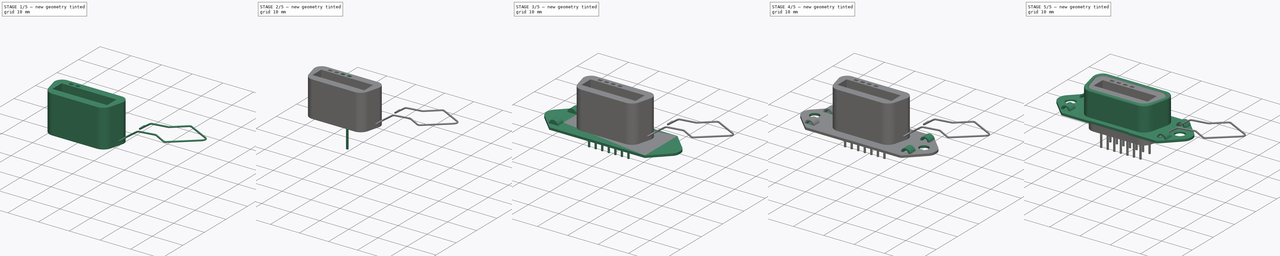
[diagram: build sequence overview — one tinted view per stage of 5, left to right]
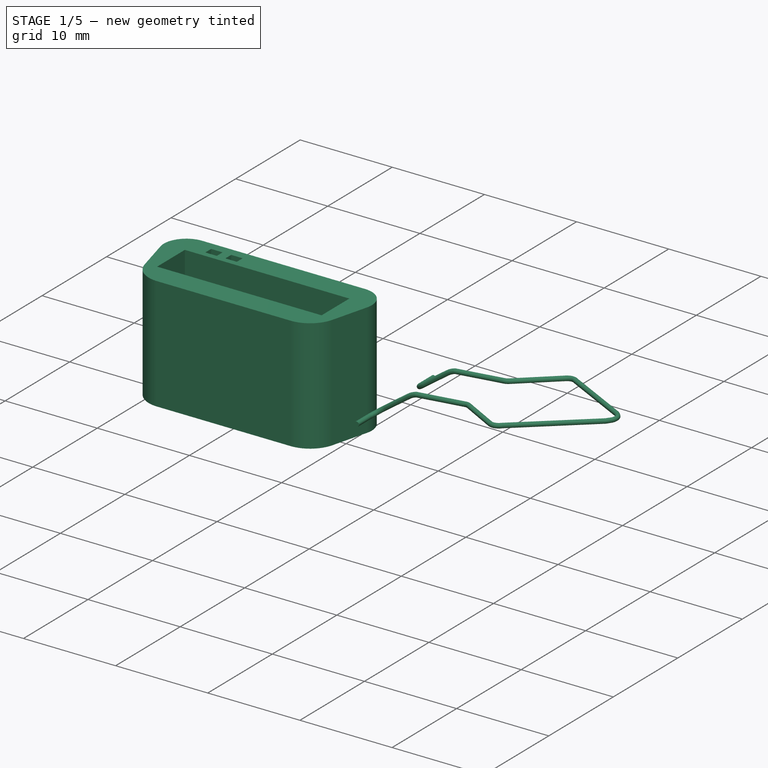
[diagram: stage 1 of 5 — iso view after this stage's code; geometry added in this stage tinted green]
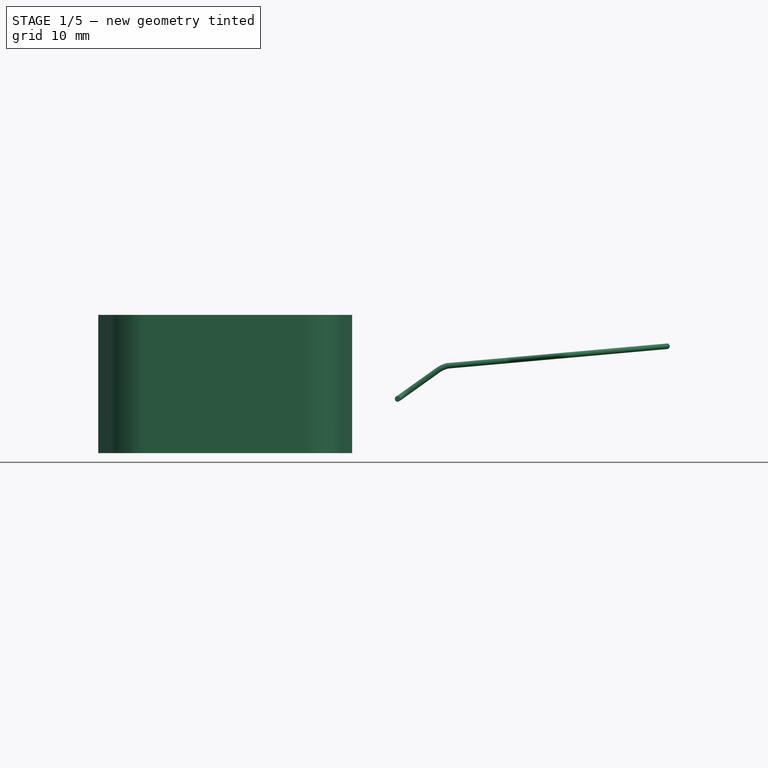
[diagram: stage 1 of 5 — front view after this stage's code; geometry added in this stage tinted green]
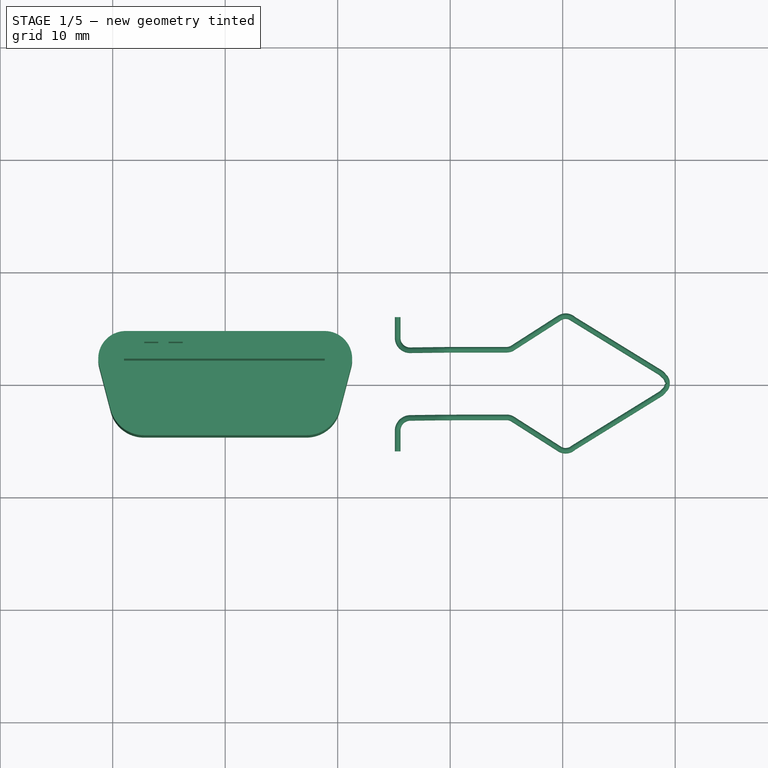
[diagram: stage 1 of 5 — top view after this stage's code; geometry added in this stage tinted green]
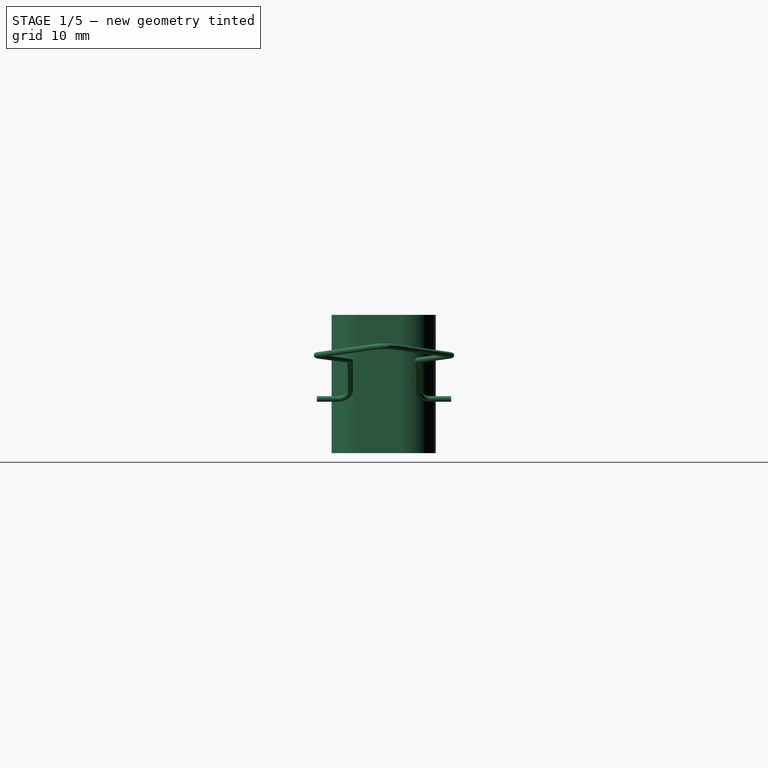
[diagram: stage 1 of 5 — right view after this stage's code; geometry added in this stage tinted green]
FCSTD DOCUMENT  (FreeCAD 0.20R29177 (Git))
Label: Norcomp_111-014-213L001Bance
License: All rights reserved
LicenseURL: http://en.wikipedia.org/wiki/All_rights_reserved
objects: Sketcher::SketchObject×9, PartDesign::Fillet×9, PartDesign::SubtractiveBox×7, PartDesign::AdditiveCylinder×4, PartDesign::Body×4, PartDesign::Pocket×3, Part::FeaturePython×3, PartDesign::SubShapeBinder×3, PartDesign::AdditiveBox×2, PartDesign::SubtractiveCylinder×2, PartDesign::Pad×2, PartDesign::Mirrored×2, Part::Extrusion×2, Part::Feature×1, PartDesign::Chamfer×1, PartDesign::LinearPattern×1, PartDesign::MultiTransform×1, Part::Section×1, PartDesign::AdditivePipe×1
note: 88 computed .brp shape members not serialized (recipe doc carries the construction recipe); baked Part::Feature solids carry a one-line shape summary decoded from their .brp

FEATURE [Sketcher::SketchObject] Sketch004  label="plastic-mass"
  FullyConstrained = false
  sketch-geometry (10):
    g0: LineSegment StartX=-8.83497 StartY=4.60395 StartZ=0 EndX=0 EndY=4.60395 EndZ=0
    g1: LineSegment StartX=0 StartY=-4.65895 StartZ=0 EndX=-7.23029 EndY=-4.65895 EndZ=0
    g2: LineSegment StartX=-11.2063 StartY=1.5329 StartZ=0 EndX=-10.1838 EndY=-2.37837 EndZ=0
    g3: ArcOfCircle CenterX=-8.83497 CenterY=2.15287 CenterZ=0 NormalX=0 NormalY=0 NormalZ=1 AngleXU=0 Radius=2.45107 StartAngle=1.5708 EndAngle=3.39731
    g4: ArcOfCircle CenterX=-7.23029 CenterY=-1.60621 CenterZ=0 NormalX=0 NormalY=0 NormalZ=1 AngleXU=0 Radius=3.05275 StartAngle=3.39731 EndAngle=4.71239
    g5: LineSegment StartX=8.83497 StartY=4.60395 StartZ=0 EndX=0 EndY=4.60395 EndZ=0
    g6: LineSegment StartX=0 StartY=-4.65895 StartZ=0 EndX=7.23029 EndY=-4.65895 EndZ=0
    g7: LineSegment StartX=11.2063 StartY=1.5329 StartZ=0 EndX=10.1838 EndY=-2.37837 EndZ=0
    g8: ArcOfCircle CenterX=8.83497 CenterY=2.15287 CenterZ=0 NormalX=0 NormalY=0 NormalZ=1 AngleXU=0 Radius=2.45107 StartAngle=6.02747 EndAngle=7.85398
    g9: ArcOfCircle CenterX=7.23029 CenterY=-1.60621 CenterZ=0 NormalX=0 NormalY=0 NormalZ=1 AngleXU=0 Radius=3.05275 StartAngle=4.71239 EndAngle=6.02747
  constraints (12):
    c: Horizontal(g0)
    c: Horizontal(g1)
    c: Tangent(g0,g3) = 1.5708
    c: Tangent(g2,g3) = -1.5708
    c: Tangent(g2,g4) = -1.5708
    c: Tangent(g1,g4) = 1.5708
    c: Horizontal(g5)
    c: Horizontal(g6)
    c: Tangent(g5,g8) = -1.5708
    c: Tangent(g7,g8) = 1.5708
    c: Tangent(g7,g9) = 1.5708
    c: Tangent(g6,g9) = -1.5708
FEATURE [PartDesign::Pad] Pad  label="plastic-base"
  Direction = (0,0,1)
  Length = 12.3
  Length2 = 10
  Profile = -> Sketch004
  ReferenceAxis = -> Sketch004 [N_Axis]
  Type = 0
FEATURE [PartDesign::SubtractiveBox] Box059
  AttacherType = Attacher::AttachEngine3D
  AttachmentOffset = pos=(-9,-2.15,2.3) rot=(0,0,1;0rad)
  BaseFeature = -> Pad
  Height = 10
  Length = 17.85
  MapMode = 5
  Placement = pos=(-9,-2.15,2.3) rot=(0,0,1;0rad)
  Support = -> [XY_Plane002]
  Width = 4.3
FEATURE [PartDesign::SubtractiveBox] Box060  label="front-hole-top-leftmost"
  AttacherType = Attacher::AttachEngine3D
  AttachmentOffset = pos=(-7.2,2.75,5) rot=(0,0,1;0rad)
  BaseFeature = -> Box059
  Height = 7.5
  Length = 1.25
  MapMode = 5
  Placement = pos=(-7.2,2.75,5) rot=(0,0,1;0rad)
  Support = -> [XY_Plane002]
  Width = 0.9
FEATURE [PartDesign::SubtractiveBox] Box061  label="front-hole-top-lefter"
  AttacherType = Attacher::AttachEngine3D
  AttachmentOffset = pos=(-5.025,2.75,5) rot=(0,0,1;0rad)
  BaseFeature = -> Box060
  Height = 7.5
  Length = 1.25
  MapMode = 5
  Placement = pos=(-5.025,2.75,5) rot=(0,0,1;0rad)
  Support = -> [XY_Plane002]
  Width = 0.9
FEATURE [PartDesign::Body] Body002  label="Plastic-insert"
  Group = -> [Sketch004,Pad,Box059,Box060,Box061,Box062,Box063,Sketch005,Pocket002,MultiTransform,LinearPattern,Mirrored]
  Origin = -> Origin002
  Placement = pos=(0,0,0.05) rot=(0,0,1;0rad)
  Tip = -> MultiTransform
FEATURE [Sketcher::SketchObject] Sketch006
  AttachmentOffset = pos=(0,0,30) rot=(0,0,1;0rad)
  FullyConstrained = false
  MapMode = 5
  sketch-geometry (10):
    g0: LineSegment StartX=-15.3287 StartY=5.96393 StartZ=0 EndX=-15.3287 EndY=4.13111 EndZ=0
    g1: ArcOfCircle CenterX=-16.4535 CenterY=4.13111 CenterZ=0 NormalX=0 NormalY=0 NormalZ=1 AngleXU=0 Radius=1.12482 StartAngle=4.75767 EndAngle=6.28319
    g2: LineSegment StartX=-16.4026 StartY=3.00745 StartZ=0 EndX=-25.0301 EndY=3.00745 EndZ=0
    g3: ArcOfCircle CenterX=-25.0301 CenterY=3.97348 CenterZ=0 NormalX=0 NormalY=0 NormalZ=1 AngleXU=0 Radius=0.966036 StartAngle=4.18291 EndAngle=4.71239
    g4: LineSegment StartX=-25.5181 StartY=3.13973 StartZ=0 EndX=-29.7175 EndY=5.82515 EndZ=0
    g5: ArcOfCircle CenterX=-30.2609 CenterY=4.97537 CenterZ=0 NormalX=0 NormalY=0 NormalZ=1 AngleXU=0 Radius=1.00867 StartAngle=1.00185 EndAngle=2.29595
    g6: LineSegment StartX=-30.9299 StartY=5.73026 StartZ=0 EndX=-38.6384 EndY=0.978398 EndZ=0
    g7: ArcOfCircle CenterX=-38.0301 CenterY=-0.00847085 CenterZ=0 NormalX=0 NormalY=0 NormalZ=1 AngleXU=0 Radius=1.15931 StartAngle=2.12322 EndAngle=2.49254
    g8: LineSegment StartX=-38.9536 StartY=0.692257 StartZ=0 EndX=-39.0634 EndY=0.581744 EndZ=0
    g9: ArcOfCircle CenterX=-38.5288 CenterY=0.0504484 CenterZ=0 NormalX=0 NormalY=0 NormalZ=1 AngleXU=0 Radius=0.753745 StartAngle=2.35935 EndAngle=3.23211
  constraints (11):
    c: Vertical(g0)
    c: Tangent(g0,g1) = 1.5708
    c: Coincident(g1,g2)
    c: Horizontal(g2)
    c: Tangent(g2,g3) = 1.5708
    c: Coincident(g3,g4)
    c: Tangent(g4,g5) = -1.5708
    c: Coincident(g5,g6)
    c: Tangent(g6,g7) = -1.5708
    c: Coincident(g7,g8)
    c: Tangent(g8,g9) = -1.5708
FEATURE [Sketcher::SketchObject] Sketch007
  AttachmentOffset = pos=(0,0,17) rot=(0,0,1;0rad)
  FullyConstrained = false
  MapMode = 5
  Placement = pos=(0,0,0) rot=(1,0,0;1.5708rad)
  sketch-geometry (3):
    g0: LineSegment StartX=-15.1976 StartY=4.72693 StartZ=0 EndX=-18.8847 EndY=7.36026 EndZ=0
    g1: ArcOfCircle CenterX=-20.4154 CenterY=5.21695 CenterZ=0 NormalX=0 NormalY=0 NormalZ=1 AngleXU=0 Radius=2.63383 StartAngle=0.950593 EndAngle=1.31384
    g2: LineSegment StartX=-19.7461 StartY=7.76431 StartZ=0 EndX=-39.5818 EndY=9.53227 EndZ=0
  constraints (2):
    c: Tangent(g0,g1) = -1.5708
    c: Coincident(g1,g2)
FEATURE [Part::Extrusion] Extrude
  Base = -> Sketch006
  Dir = (0,0,1)
  DirMode = 2
  FaceMakerClass = Part::FaceMakerBullseye
  LengthFwd = 50
  LengthRev = 0
  Solid = false
  Symmetric = true
FEATURE [Part::Extrusion] Extrude001
  Base = -> Sketch007
  Dir = (0,-1,2e-16)
  DirMode = 2
  FaceMakerClass = Part::FaceMakerBullseye
  LengthFwd = 50
  LengthRev = 0
  Solid = false
  Symmetric = true
FEATURE [Part::Section] Section
  Approximation = false
  Base = -> Extrude
  Tool = -> Extrude001
FEATURE [PartDesign::SubShapeBinder] Binder002
  BindCopyOnChange = 0
  BindMode = 0
  ClaimChildren = false
  Context = -> Body [Binder002.]
  Fuse = false
  MakeFace = true
  OffsetFill = false
  OffsetIntersection = false
  OffsetJoinType = 0
  OffsetOpenResult = false
  PartialLoad = false
  Relative = true
  Support = -> [Section]
  _Version = 2
FEATURE [Sketcher::SketchObject] Sketch008
  FullyConstrained = true
  MapMode = 7
  Placement = pos=(-15.3287,5.96393,4.82053) rot=(1,0,0;1.5708rad)
  Support = -> [Binder002]
  sketch-geometry (1):
    g0: Circle CenterX=0 CenterY=0 CenterZ=0 NormalX=0 NormalY=0 NormalZ=1 AngleXU=0 Radius=0.25
  constraints (2):
    c: Coincident(g0,g-1)
    c: Radius(g0) = 0.25
FEATURE [PartDesign::AdditivePipe] AdditivePipe
  AuxilleryCurvelinear = true
  AuxillerySpineTangent = false
  Binormal = (0,0,0)
  Mode = 0
  Profile = -> Sketch008
  Spine = -> Binder002
  SpineTangent = false
  Transformation = 0
  Transition = 0
FEATURE [PartDesign::Mirrored] Mirrored001
  BaseFeature = -> AdditivePipe
  MirrorPlane = -> XZ_Plane
  Originals = -> [AdditivePipe]
FEATURE [PartDesign::Body] Body  label="handle left"
  Group = -> [Binder,Binder001,Binder002,Sketch008,AdditivePipe,Mirrored001]
  Origin = -> Origin
  Tip = -> Mirrored001
FEATURE [Part::FeaturePython] Clone  label="handles right"  # Draft clone (typed FeaturePython)
  AttacherType = Attacher::AttachEngine3D
  Fuse = false
  Objects = -> [Body]
  Scale = (-1,1,1)
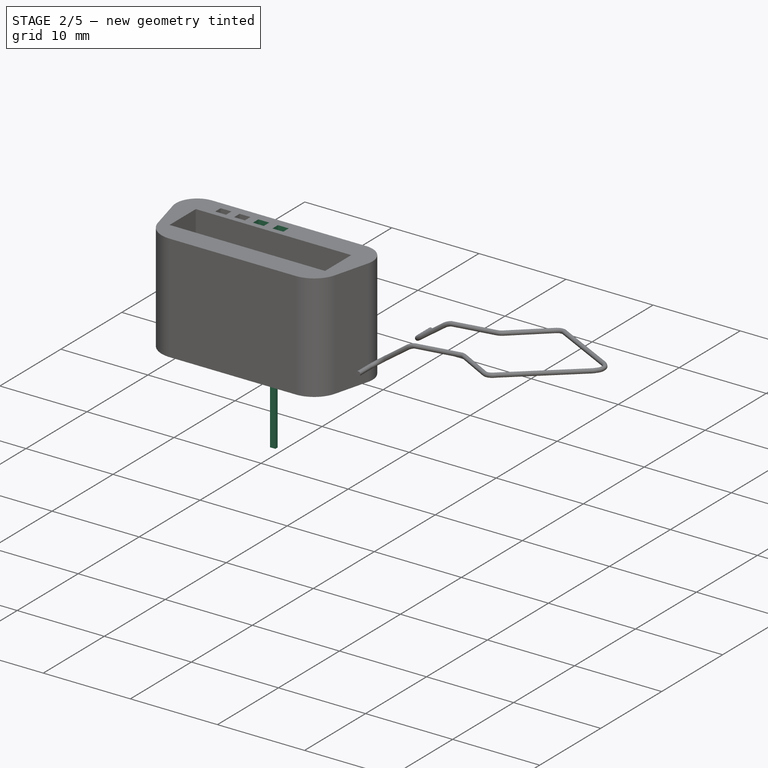
[diagram: stage 2 of 5 — iso view after this stage's code; geometry added in this stage tinted green]
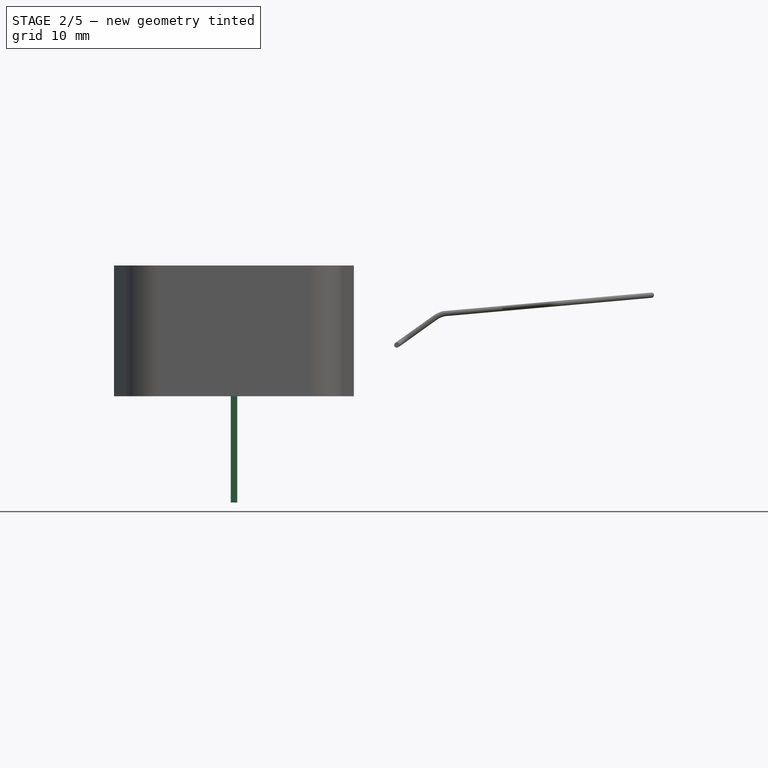
[diagram: stage 2 of 5 — front view after this stage's code; geometry added in this stage tinted green]
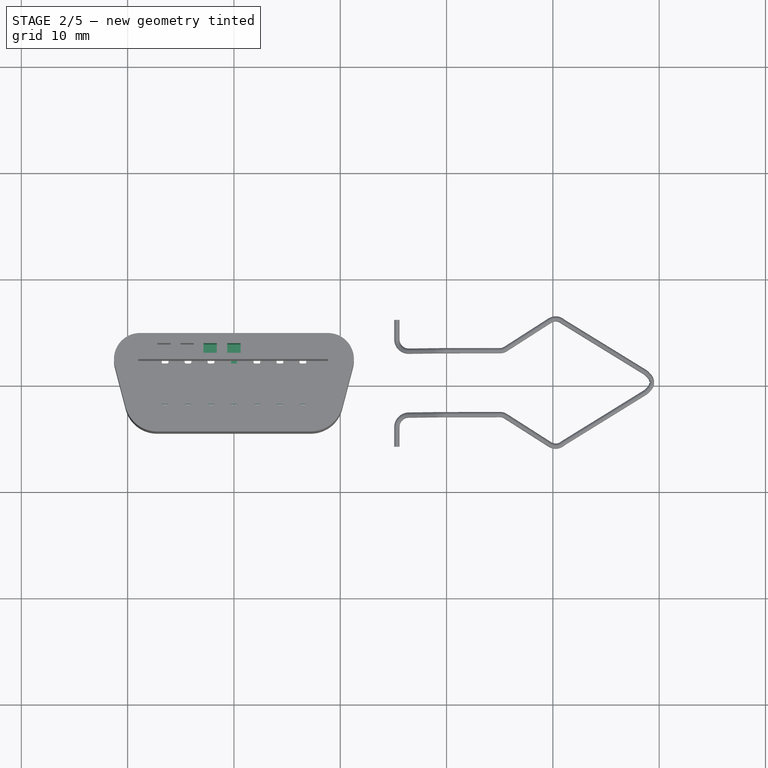
[diagram: stage 2 of 5 — top view after this stage's code; geometry added in this stage tinted green]
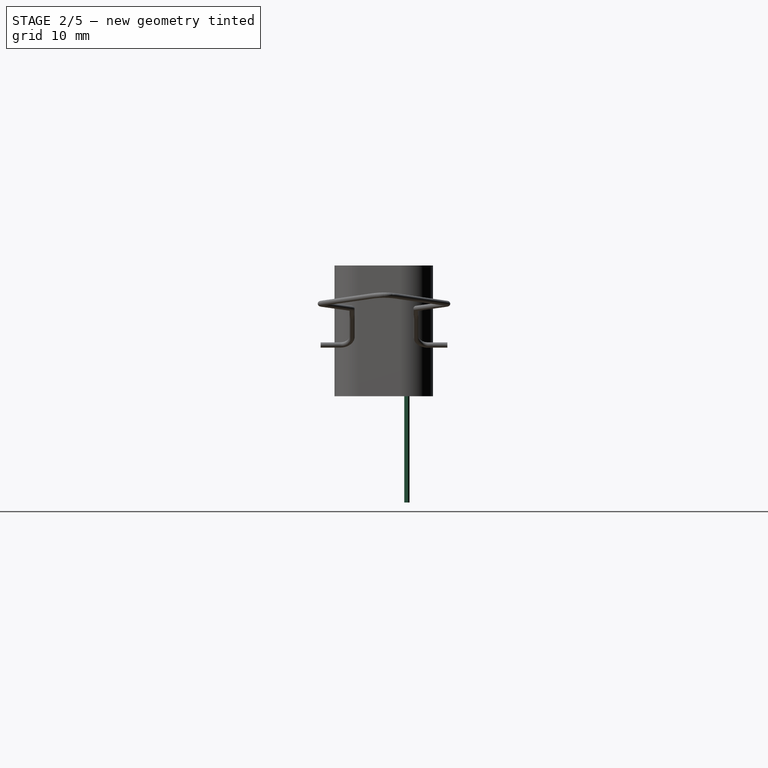
[diagram: stage 2 of 5 — right view after this stage's code; geometry added in this stage tinted green]
FEATURE [PartDesign::SubtractiveBox] Box062  label="font-hole-top-left"
  AttacherType = Attacher::AttachEngine3D
  AttachmentOffset = pos=(-2.865,2.75,5) rot=(0,0,1;0rad)
  BaseFeature = -> Box061
  Height = 7.5
  Length = 1.25
  MapMode = 5
  Placement = pos=(-2.865,2.75,5) rot=(0,0,1;0rad)
  Support = -> [XY_Plane002]
  Width = 0.9
FEATURE [PartDesign::SubtractiveBox] Box063  label="front-hole-top-mid"
  AttacherType = Attacher::AttachEngine3D
  AttachmentOffset = pos=(-0.625,2.75,5) rot=(0,0,1;0rad)
  BaseFeature = -> Box062
  Height = 7.5
  Length = 1.25
  MapMode = 5
  Placement = pos=(-0.625,2.75,5) rot=(0,0,1;0rad)
  Support = -> [XY_Plane002]
  Width = 0.9
FEATURE [PartDesign::SubShapeBinder] Binder  label="handle-left"
  BindCopyOnChange = 0
  BindMode = 0
  ClaimChildren = false
  Context = -> Body [Binder.]
  Fuse = false
  MakeFace = true
  OffsetFill = false
  OffsetIntersection = false
  OffsetJoinType = 0
  OffsetOpenResult = false
  PartialLoad = false
  Relative = true
  _Version = 2
FEATURE [PartDesign::SubShapeBinder] Binder001  label="handle-right"
  BindCopyOnChange = 0
  BindMode = 0
  ClaimChildren = false
  Context = -> Body [Binder001.]
  Fuse = false
  MakeFace = true
  OffsetFill = false
  OffsetIntersection = false
  OffsetJoinType = 0
  OffsetOpenResult = false
  PartialLoad = false
  Placement = pos=(0,0,0) rot=(0,0,1;3.14159rad)
  Relative = true
  _Version = 2
FEATURE [PartDesign::AdditiveBox] Box064
  AttacherType = Attacher::AttachEngine3D
  AttachmentOffset = pos=(-0.3,1.9,-10) rot=(0,0,1;0rad)
  Height = 11.8
  Length = 0.61
  MapMode = 5
  Placement = pos=(-0.3,1.9,-10) rot=(0,0,1;0rad)
  Support = -> [XY_Plane018]
  Width = 0.5
FEATURE [PartDesign::Fillet] Fillet073
  Base = -> Box064 [Edge7]
  BaseFeature = -> Box064
  Placement = pos=(-0.3,1.9,-10) rot=(0,0,1;0rad)
  Radius = 0.2
  SupportTransform = false
  UseAllEdges = false
FEATURE [PartDesign::Fillet] Fillet074
  Base = -> Fillet073 [Edge15]
  BaseFeature = -> Fillet073
  Placement = pos=(-0.3,1.9,-10) rot=(0,0,1;0rad)
  Radius = 0.2
  SupportTransform = false
  UseAllEdges = false
FEATURE [Sketcher::SketchObject] Sketch005  label="pin-holes001"
  FullyConstrained = false
  MapMode = 5
  Support = -> [XY_Plane002]
  sketch-geometry (10):
    g0: ArcOfCircle CenterX=-6.6675 CenterY=2.286 CenterZ=0 NormalX=0 NormalY=0 NormalZ=1 AngleXU=0 Radius=0.127 StartAngle=1.5708 EndAngle=3.14159
    g1: LineSegment StartX=-6.6675 StartY=2.413 StartZ=0 EndX=-6.2865 EndY=2.413 EndZ=0
    g2: ArcOfCircle CenterX=-6.2865 CenterY=2.286 CenterZ=0 NormalX=0 NormalY=0 NormalZ=1 AngleXU=0 Radius=0.127 StartAngle=1e-16 EndAngle=1.5708
    g3: LineSegment StartX=-6.1595 StartY=2.286 StartZ=0 EndX=-6.1595 EndY=2.032 EndZ=0
    g4: ArcOfCircle CenterX=-6.2865 CenterY=2.032 CenterZ=0 NormalX=0 NormalY=0 NormalZ=1 AngleXU=0 Radius=0.127 StartAngle=4.71239 EndAngle=6.28319
    g5: LineSegment StartX=-6.2865 StartY=1.905 StartZ=0 EndX=-6.6675 EndY=1.905 EndZ=0
    g6: ArcOfCircle CenterX=-6.6675 CenterY=2.032 CenterZ=0 NormalX=0 NormalY=0 NormalZ=1 AngleXU=0 Radius=0.127 StartAngle=3.14159 EndAngle=4.71239
    g7: LineSegment StartX=-6.7945 StartY=2.032 StartZ=0 EndX=-6.7945 EndY=2.286 EndZ=0
    g8: GeomPoint X=-6.7945 Y=2.413 Z=0
    g9: GeomPoint X=-6.1595 Y=1.905 Z=0
  constraints (19):
    c: Tangent(g0,g1) = 1.5708
    c: Tangent(g1,g2) = 1.5708
    c: Tangent(g2,g3) = 1.5708
    c: Tangent(g3,g4) = 1.5708
    c: Tangent(g4,g5) = 1.5708
    c: Tangent(g5,g6) = 1.5708
    c: Tangent(g6,g7) = 1.5708
    c: Tangent(g7,g0) = 1.5708
    c: Horizontal(g1)
    c: Horizontal(g5)
    c: Vertical(g3)
    c: Vertical(g7)
    c: Equal(g0,g2)
    c: Equal(g2,g4)
    c: Equal(g4,g6)
    c: PointOnObject(g8,g1)
    c: PointOnObject(g8,g7)
    c: PointOnObject(g9,g3)
    c: PointOnObject(g9,g5)
FEATURE [PartDesign::Pocket] Pocket002  label="pinhole"
  AlongSketchNormal = false
  BaseFeature = -> Box063
  Direction = (0,0,-1)
  Length = 4.6
  Length2 = 0
  Midplane = true
  Placement = pos=(-0.625,2.75,5) rot=(0,0,1;0rad)
  Profile = -> Sketch005
  ReferenceAxis = -> Sketch005 [N_Axis]
  Type = 4
FEATURE [PartDesign::LinearPattern] LinearPattern
  Direction = -> Sketch005 [H_Axis]
  Length = 12.96
  Occurrences = 7
  Placement = pos=(-0.625,2.75,5) rot=(0,0,1;0rad)
FEATURE [PartDesign::Mirrored] Mirrored
  MirrorPlane = -> Sketch005 [H_Axis]
  Placement = pos=(-0.625,2.75,5) rot=(0,0,1;0rad)
FEATURE [PartDesign::MultiTransform] MultiTransform
  BaseFeature = -> Pocket002
  Originals = -> [Pocket002]
  Placement = pos=(-0.625,2.75,5) rot=(0,0,1;0rad)
  Transformations = -> [LinearPattern,Mirrored]
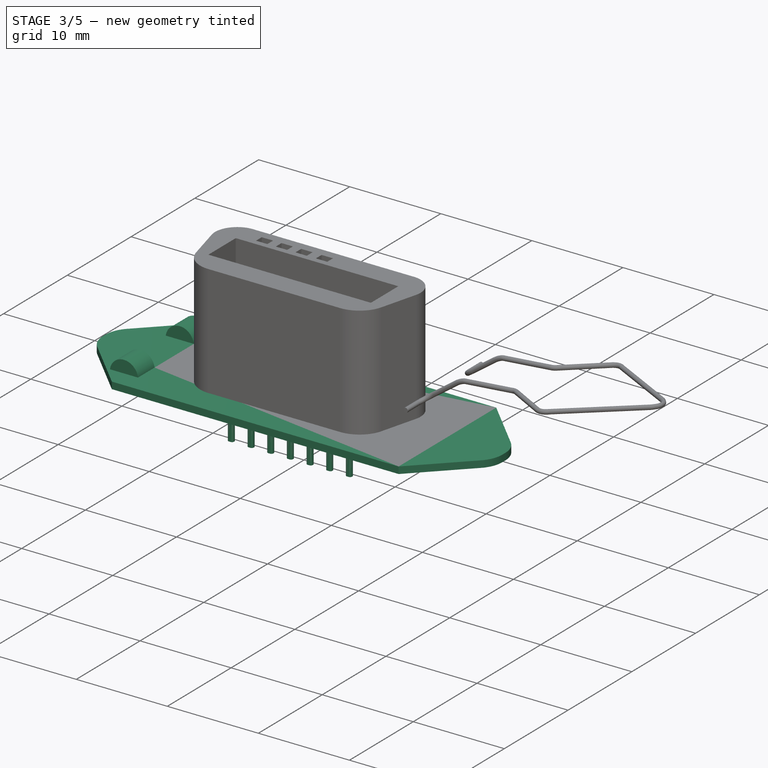
[diagram: stage 3 of 5 — iso view after this stage's code; geometry added in this stage tinted green]
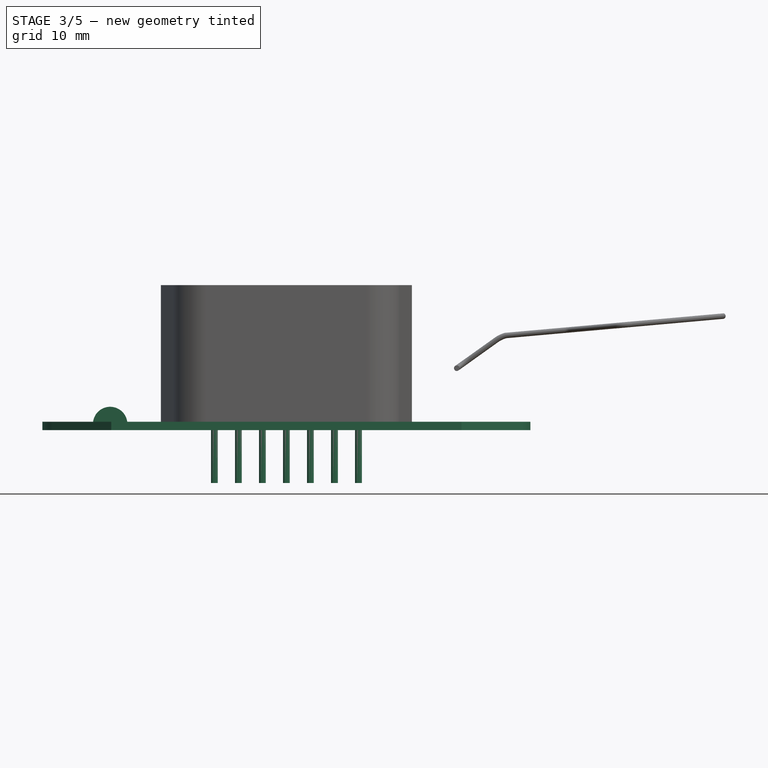
[diagram: stage 3 of 5 — front view after this stage's code; geometry added in this stage tinted green]
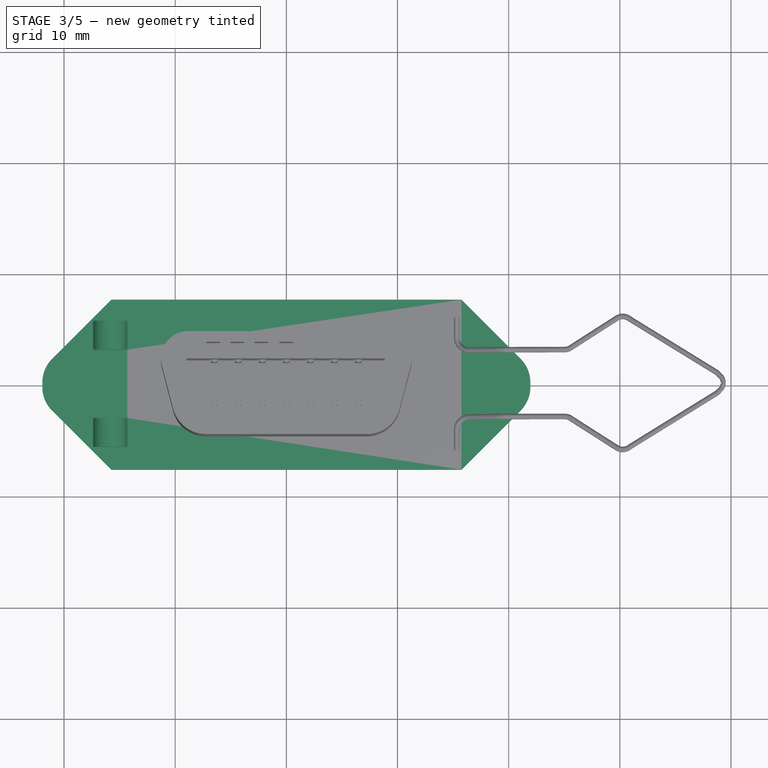
[diagram: stage 3 of 5 — top view after this stage's code; geometry added in this stage tinted green]
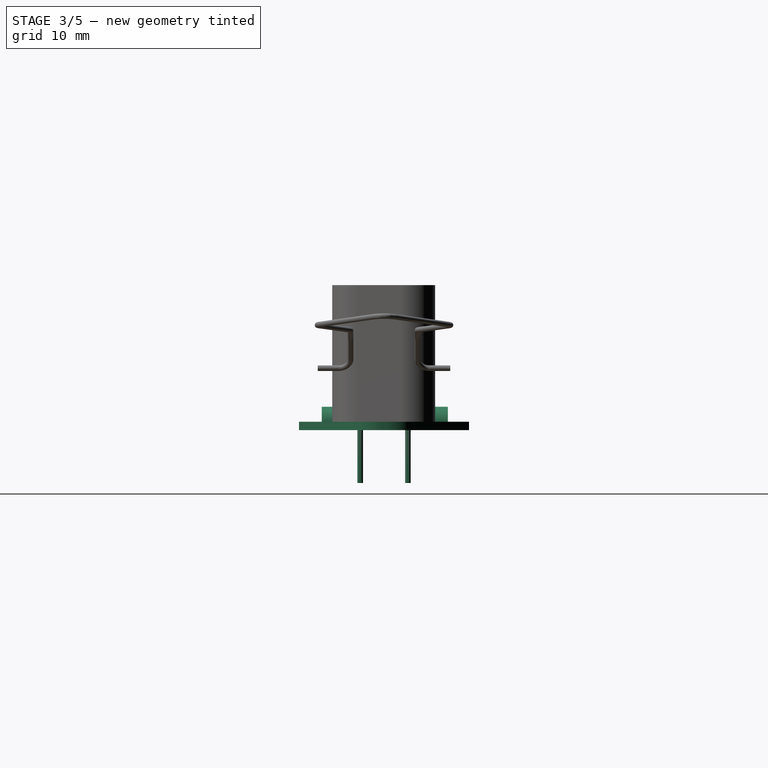
[diagram: stage 3 of 5 — right view after this stage's code; geometry added in this stage tinted green]
FEATURE [Sketcher::SketchObject] Sketch001  label="pin-holes"
  FullyConstrained = false
  MapMode = 5
  Support = -> [XY_Plane017]
  sketch-geometry (16):
    g0: Circle CenterX=18 CenterY=0 CenterZ=0 NormalX=0 NormalY=0 NormalZ=1 AngleXU=0 Radius=1.525
    g1: Circle CenterX=-18 CenterY=0 CenterZ=0 NormalX=0 NormalY=0 NormalZ=1 AngleXU=0 Radius=1.525
    g2: Circle CenterX=6.48 CenterY=2.145 CenterZ=0 NormalX=0 NormalY=0 NormalZ=1 AngleXU=0 Radius=0.5
    g3: Circle CenterX=4.32 CenterY=2.145 CenterZ=0 NormalX=0 NormalY=0 NormalZ=1 AngleXU=0 Radius=0.5
    g4: Circle CenterX=2.16 CenterY=2.145 CenterZ=0 NormalX=0 NormalY=0 NormalZ=1 AngleXU=0 Radius=0.5
    g5: Circle CenterX=0 CenterY=2.145 CenterZ=0 NormalX=0 NormalY=0 NormalZ=1 AngleXU=0 Radius=0.5
    g6: Circle CenterX=-2.16 CenterY=2.145 CenterZ=0 NormalX=0 NormalY=0 NormalZ=1 AngleXU=0 Radius=0.5
    g7: Circle CenterX=-4.32 CenterY=2.145 CenterZ=0 NormalX=0 NormalY=0 NormalZ=1 AngleXU=0 Radius=0.5
    g8: Circle CenterX=-6.48 CenterY=2.145 CenterZ=0 NormalX=0 NormalY=0 NormalZ=1 AngleXU=0 Radius=0.5
    g9: Circle CenterX=0 CenterY=-2.145 CenterZ=0 NormalX=0 NormalY=0 NormalZ=1 AngleXU=0 Radius=0.5
    g10: Circle CenterX=6.48 CenterY=-2.145 CenterZ=0 NormalX=0 NormalY=0 NormalZ=1 AngleXU=0 Radius=0.5
    g11: Circle CenterX=4.32 CenterY=-2.145 CenterZ=0 NormalX=0 NormalY=0 NormalZ=1 AngleXU=0 Radius=0.5
    g12: Circle CenterX=2.16 CenterY=-2.145 CenterZ=0 NormalX=0 NormalY=0 NormalZ=1 AngleXU=0 Radius=0.5
    g13: Circle CenterX=-2.16 CenterY=-2.145 CenterZ=0 NormalX=0 NormalY=0 NormalZ=1 AngleXU=0 Radius=0.5
    g14: Circle CenterX=-4.32 CenterY=-2.145 CenterZ=0 NormalX=0 NormalY=0 NormalZ=1 AngleXU=0 Radius=0.5
    g15: Circle CenterX=-6.48 CenterY=-2.145 CenterZ=0 NormalX=0 NormalY=0 NormalZ=1 AngleXU=0 Radius=0.5
FEATURE [Part::Feature] Part__Feature  label="ref-model"
  Placement = pos=(82,37.7827,-17.4685) rot=(1,0,0;1.5708rad)
  shape: bbox 79.46 x 15.41 x 18.47 mm, 1573 faces, 4 solids (baked)
FEATURE [PartDesign::AdditiveBox] Box057
  AttacherType = Attacher::AttachEngine3D
  AttachmentOffset = pos=(-21.95,-7.65,-0.75) rot=(0,0,1;0rad)
  Height = 0.75
  Length = 43.9
  MapMode = 5
  Placement = pos=(-21.95,-7.65,-0.75) rot=(0,0,1;0rad)
  Support = -> [XY_Plane017]
  Width = 15.3
FEATURE [PartDesign::Chamfer] Chamfer004
  Angle = 45
  Base = -> Box057 [Edge1,Edge3,Edge7,Edge5]
  BaseFeature = -> Box057
  ChamferType = 0
  FlipDirection = false
  Placement = pos=(-21.95,-7.65,-0.75) rot=(0,0,1;0rad)
  Size = 6.2
  Size2 = 1
  SupportTransform = false
  UseAllEdges = false
FEATURE [PartDesign::Fillet] Fillet069
  Base = -> Chamfer004 [Edge2,Edge3,Edge24,Edge23]
  BaseFeature = -> Chamfer004
  Placement = pos=(-21.95,-7.65,-0.75) rot=(0,0,1;0rad)
  Radius = 3
  SupportTransform = false
  UseAllEdges = false
FEATURE [Sketcher::SketchObject] Sketch002  label="chassis001"
  FullyConstrained = false
  MapMode = 5
  Support = -> [XY_Plane017]
  sketch-geometry (22):
    g0: LineSegment StartX=15.5 StartY=-7.7 StartZ=0 EndX=-15.5 EndY=-7.7 EndZ=0
    g1: LineSegment StartX=-15.5 StartY=7.7 StartZ=0 EndX=15.5 EndY=7.7 EndZ=0
    g2: ArcOfCircle CenterX=-10.7 CenterY=5.404 CenterZ=0 NormalX=0 NormalY=0 NormalZ=1 AngleXU=1.8744 Radius=1.722 StartAngle=0 EndAngle=1.2672
    g3: LineSegment StartX=-11.1999 StartY=7.04954 StartZ=0 EndX=11.1999 EndY=7.04954 EndZ=0
    g4: ArcOfCircle CenterX=10.7 CenterY=5.404 CenterZ=0 NormalX=0 NormalY=0 NormalZ=1 AngleXU=1.2672 Radius=1.722 StartAngle=5.02159 EndAngle=6.28319
    g5: LineSegment StartX=-21.1655 StartY=2.01497 StartZ=0 EndX=-15.6356 EndY=7.63507 EndZ=0
    g6: LineSegment StartX=-15.6356 StartY=7.63507 StartZ=0 EndX=-15.5 EndY=7.7 EndZ=0
    g7: LineSegment StartX=-15.6356 StartY=-7.63507 StartZ=0 EndX=-21.1655 EndY=-2.01497 EndZ=0
    g8: LineSegment StartX=-15.5 StartY=-7.7 StartZ=0 EndX=-15.6356 EndY=-7.63507 EndZ=0
    g9: LineSegment StartX=15.6353 StartY=-7.63492 StartZ=0 EndX=15.5 EndY=-7.7 EndZ=0
    g10: LineSegment StartX=21.1655 StartY=-2.01497 StartZ=0 EndX=15.6356 EndY=-7.63507 EndZ=0
    g11: LineSegment StartX=15.6356 StartY=7.63507 StartZ=0 EndX=21.1655 EndY=2.01497 EndZ=0
    g12: LineSegment StartX=15.5224 StartY=7.69472 StartZ=0 EndX=15.6224 EndY=7.64472 EndZ=0
    g13: LineSegment StartX=-10.8716 StartY=-5.50704 StartZ=0 EndX=-12.4215 EndY=5.39696 EndZ=0
    g14: LineSegment StartX=6.42951e-06 StartY=-7.05136 StartZ=0 EndX=-9.65081 EndY=-7.0526 EndZ=0
    g15: LineSegment StartX=9.65081 StartY=-7.0446 StartZ=0 EndX=-6.42951e-06 EndY=-7.04336 EndZ=0
    g16: LineSegment StartX=12.4215 StartY=5.40496 StartZ=0 EndX=10.8716 EndY=-5.49904 EndZ=0
    g17: ArcOfCircle CenterX=-19.15 CenterY=4.441e-13 CenterZ=0 NormalX=0 NormalY=0 NormalZ=1 AngleXU=-2.35619 Radius=2.85 StartAngle=4.71246 EndAngle=6.28311
    g18: ArcOfCircle CenterX=19.15 CenterY=4.388e-13 CenterZ=0 NormalX=0 NormalY=0 NormalZ=1 AngleXU=-0.785398 Radius=2.85 StartAngle=7.12766e-05 EndAngle=1.57073
    g19: ArcOfCircle CenterX=10.7 CenterY=5.404 CenterZ=0 NormalX=0 NormalY=0 NormalZ=1 AngleXU=1.2672 Radius=1.722 StartAngle=5.01599 EndAngle=5.01996
    g20: ArcOfCircle CenterX=-9.15014 CenterY=-5.40446 CenterZ=0 NormalX=0 NormalY=0 NormalZ=1 AngleXU=-1.8744 Radius=1.72473 StartAngle=5.0743 EndAngle=6.28307
    g21: ArcOfCircle CenterX=9.15014 CenterY=-5.39646 CenterZ=0 NormalX=0 NormalY=0 NormalZ=1 AngleXU=-1.2672 Radius=1.72473 StartAngle=0.000111196 EndAngle=1.20889
FEATURE [PartDesign::AdditiveCylinder] Cylinder016  label="hinge-top-left"
  Angle = 180
  AttacherType = Attacher::AttachEngine3D
  AttachmentOffset = pos=(-15.85,5.75,-0.2) rot=(1,0,0;1.5708rad)
  BaseFeature = -> Fillet069
  FirstAngle = 0
  Height = 2.6
  MapMode = 5
  Placement = pos=(-15.85,5.75,-0.2) rot=(1,0,0;1.5708rad)
  Radius = 1.55
  SecondAngle = 0
  Support = -> [XY_Plane017]
FEATURE [PartDesign::AdditiveCylinder] Cylinder017  label="hinge-bot-left"
  Angle = 180
  AttacherType = Attacher::AttachEngine3D
  AttachmentOffset = pos=(-15.85,-3,-0.2) rot=(1,0,0;1.5708rad)
  BaseFeature = -> Cylinder016
  FirstAngle = 0
  Height = 2.6
  MapMode = 5
  Placement = pos=(-15.85,-3,-0.2) rot=(1,0,0;1.5708rad)
  Radius = 1.55
  SecondAngle = 0
  Support = -> [XY_Plane017]
FEATURE [PartDesign::Fillet] Fillet075
  Base = -> Fillet074 [Edge16]
  BaseFeature = -> Fillet074
  Placement = pos=(-0.3,1.9,-10) rot=(0,0,1;0rad)
  Radius = 0.2
  SupportTransform = false
  UseAllEdges = false
FEATURE [PartDesign::Fillet] Fillet076  label="Pin1"
  Base = -> Fillet075 [Edge16]
  BaseFeature = -> Fillet075
  Placement = pos=(-0.3,1.9,-10) rot=(0,0,1;0rad)
  Radius = 0.2
  SupportTransform = false
  UseAllEdges = false
FEATURE [PartDesign::Body] Body017  label="base-pin"
  Group = -> [Box064,Fillet073,Fillet074,Fillet075,Fillet076]
  Origin = -> Origin018
  Placement = pos=(-6.48,0,4.5) rot=(0,0,1;0rad)
  Tip = -> Fillet076
FEATURE [Part::FeaturePython] Array  label="pins"  # Draft array (typed FeaturePython)
  AlwaysSyncPlacement = false
  Angle = 360
  ArrayType = 0
  Axis = (0,0,1)
  Base = -> Body017
  Center = (0,0,0)
  Count = 14
  ExpandArray = false
  Fuse = false
  IntervalAxis = (0,0,0)
  IntervalX = (2.16,0,0)
  IntervalY = (0,-4.29,0)
  IntervalZ = (0,0,100)
  NumberCircles = 3
  NumberPolar = 5
  NumberX = 7
  NumberY = 2
  NumberZ = 1
  PlacementList = 14 placements: [(-6.48,0,4.5),(-6.48,-4.29,4.5),(-4.32,0,4.5),(-4.32,-4.29,4.5),(-2.16,0,4.5),(-2.16,-4.29,4.5),(0,0,4.5),(0,-4.29,4.5),(2.16,0,4.5),(2.16,-4.29,4.5),(4.32,0,4.5),(4.32,-4.29,4.5),(6.48,0,4.5),(6.48,-4.29,4.5)]
  RadialDistance = 50
  ScaleList = (14) [(1,1,1),(1,1,1),(1,1,1),(1,1,1),(1,1,1),(1,1,1),(1,1,1),(1,1,1),(1,1,1),(1,1,1),(1,1,1),(1,1,1),(1,1,1),(1,1,1)]
  Symmetry = 1
  TangentialDistance = 25
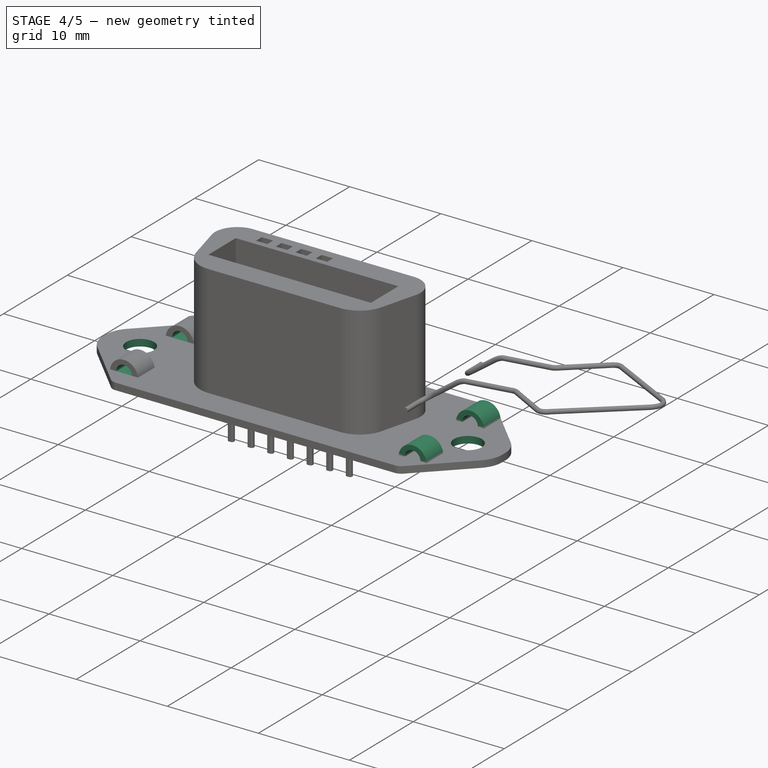
[diagram: stage 4 of 5 — iso view after this stage's code; geometry added in this stage tinted green]
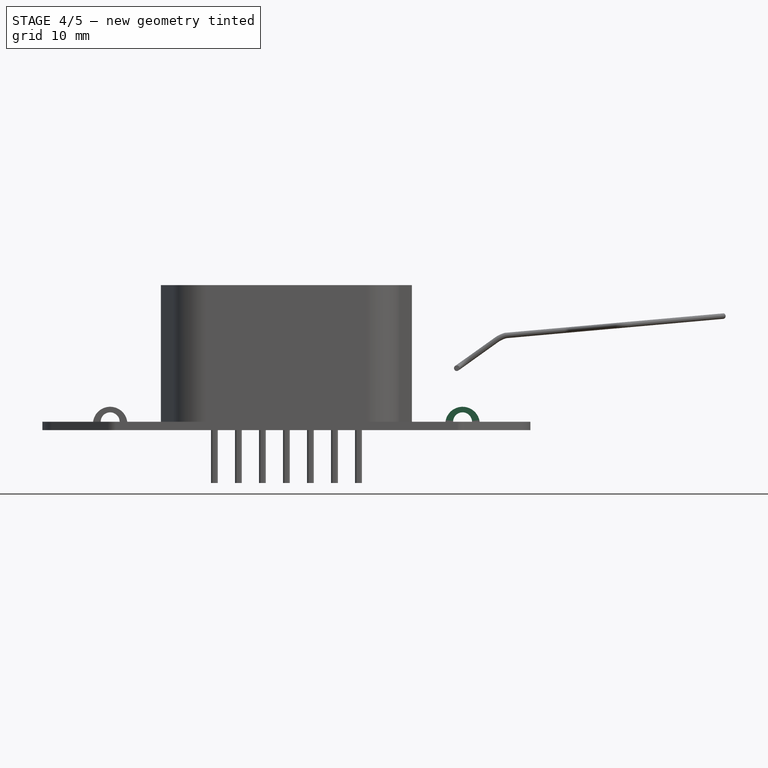
[diagram: stage 4 of 5 — front view after this stage's code; geometry added in this stage tinted green]
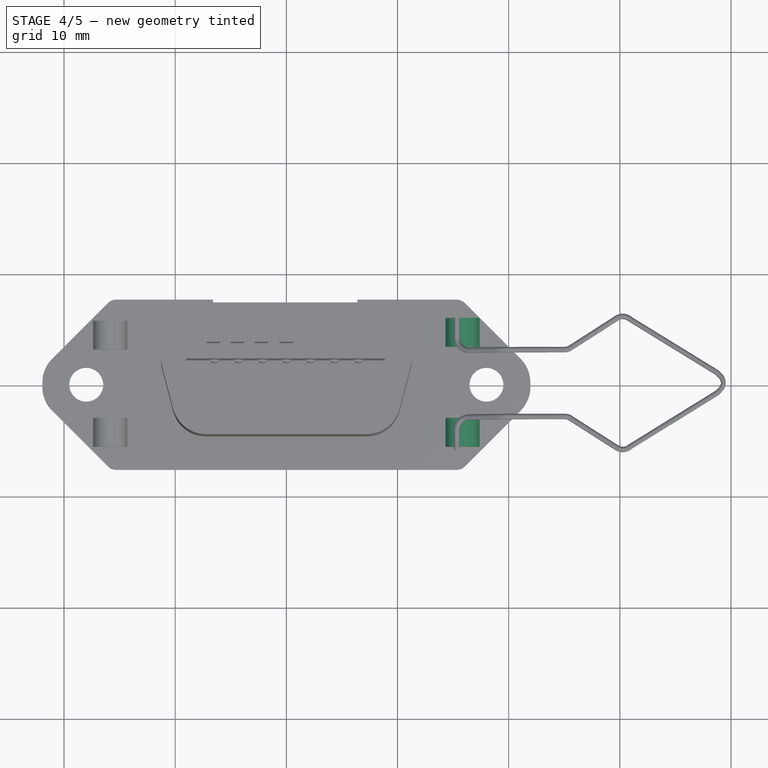
[diagram: stage 4 of 5 — top view after this stage's code; geometry added in this stage tinted green]
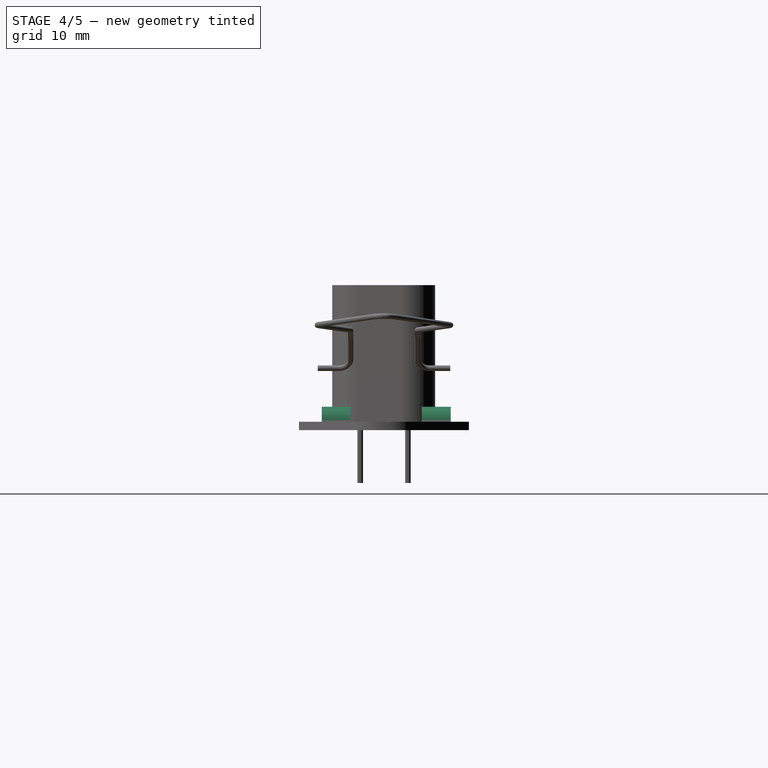
[diagram: stage 4 of 5 — right view after this stage's code; geometry added in this stage tinted green]
FEATURE [PartDesign::AdditiveCylinder] Cylinder018  label="hinge-bot-right"
  Angle = 180
  AttacherType = Attacher::AttachEngine3D
  AttachmentOffset = pos=(15.85,-3,-0.2) rot=(1,0,0;1.5708rad)
  BaseFeature = -> Cylinder017
  FirstAngle = 0
  Height = 2.6
  MapMode = 5
  Placement = pos=(15.85,-3,-0.2) rot=(1,0,0;1.5708rad)
  Radius = 1.55
  SecondAngle = 0
  Support = -> [XY_Plane017]
FEATURE [PartDesign::AdditiveCylinder] Cylinder019  label="hinge-top-right"
  Angle = 180
  AttacherType = Attacher::AttachEngine3D
  AttachmentOffset = pos=(15.85,6,-0.2) rot=(1,0,0;1.5708rad)
  BaseFeature = -> Cylinder018
  FirstAngle = 0
  Height = 2.6
  MapMode = 5
  Placement = pos=(15.85,6,-0.2) rot=(1,0,0;1.5708rad)
  Radius = 1.55
  SecondAngle = 0
  Support = -> [XY_Plane017]
FEATURE [PartDesign::SubtractiveCylinder] Cylinder020  label="hinge-holes-left"
  Angle = 180
  AttacherType = Attacher::AttachEngine3D
  AttachmentOffset = pos=(-15.85,7,0) rot=(1,0,0;1.5708rad)
  BaseFeature = -> Cylinder019
  FirstAngle = 0
  Height = 14
  MapMode = 5
  Placement = pos=(-15.85,7,0) rot=(1,0,0;1.5708rad)
  Radius = 0.85
  SecondAngle = 0
  Support = -> [XY_Plane017]
FEATURE [PartDesign::SubtractiveCylinder] Cylinder021  label="hinge-holes-right"
  Angle = 180
  AttacherType = Attacher::AttachEngine3D
  AttachmentOffset = pos=(15.85,7,0) rot=(1,0,0;1.5708rad)
  BaseFeature = -> Cylinder020
  FirstAngle = 0
  Height = 14
  MapMode = 5
  Placement = pos=(15.85,7,0) rot=(1,0,0;1.5708rad)
  Radius = 0.85
  SecondAngle = 0
  Support = -> [XY_Plane017]
FEATURE [PartDesign::Fillet] Fillet070
  Base = -> Cylinder021 [Edge31,Edge58,Edge62,Edge60]
  BaseFeature = -> Cylinder021
  Placement = pos=(15.85,7,0) rot=(1,0,0;1.5708rad)
  Radius = 1
  SupportTransform = false
  UseAllEdges = false
FEATURE [PartDesign::Pocket] Pocket  label="attach_n_pin-holes"
  BaseFeature = -> Fillet070
  Direction = (0,0,-1)
  Length = 2
  Length2 = 5
  Placement = pos=(15.85,7,0) rot=(1,0,0;1.5708rad)
  Profile = -> Sketch001
  ReferenceAxis = -> Sketch001 [N_Axis]
  Type = 0
FEATURE [Sketcher::SketchObject] Sketch003  label="plastic-opening"
  FullyConstrained = false
  sketch-geometry (10):
    g0: LineSegment StartX=-8.83497 StartY=4.60395 StartZ=0 EndX=0 EndY=4.60395 EndZ=0
    g1: LineSegment StartX=0 StartY=-4.65895 StartZ=0 EndX=-7.23029 EndY=-4.65895 EndZ=0
    g2: LineSegment StartX=-11.2063 StartY=1.5329 StartZ=0 EndX=-10.1838 EndY=-2.37837 EndZ=0
    g3: ArcOfCircle CenterX=-8.83497 CenterY=2.15287 CenterZ=0 NormalX=0 NormalY=0 NormalZ=1 AngleXU=0 Radius=2.45107 StartAngle=1.5708 EndAngle=3.39731
    g4: ArcOfCircle CenterX=-7.23029 CenterY=-1.60621 CenterZ=0 NormalX=0 NormalY=0 NormalZ=1 AngleXU=0 Radius=3.05275 StartAngle=3.39731 EndAngle=4.71239
    g5: LineSegment StartX=8.83497 StartY=4.60395 StartZ=0 EndX=0 EndY=4.60395 EndZ=0
    g6: LineSegment StartX=0 StartY=-4.65895 StartZ=0 EndX=7.23029 EndY=-4.65895 EndZ=0
    g7: LineSegment StartX=11.2063 StartY=1.5329 StartZ=0 EndX=10.1838 EndY=-2.37837 EndZ=0
    g8: ArcOfCircle CenterX=8.83497 CenterY=2.15287 CenterZ=0 NormalX=0 NormalY=0 NormalZ=1 AngleXU=0 Radius=2.45107 StartAngle=6.02747 EndAngle=7.85398
    g9: ArcOfCircle CenterX=7.23029 CenterY=-1.60621 CenterZ=0 NormalX=0 NormalY=0 NormalZ=1 AngleXU=0 Radius=3.05275 StartAngle=4.71239 EndAngle=6.02747
  constraints (12):
    c: Horizontal(g0)
    c: Horizontal(g1)
    c: Tangent(g0,g3) = 1.5708
    c: Tangent(g2,g3) = -1.5708
    c: Tangent(g2,g4) = -1.5708
    c: Tangent(g1,g4) = 1.5708
    c: Horizontal(g5)
    c: Horizontal(g6)
    c: Tangent(g5,g8) = -1.5708
    c: Tangent(g7,g8) = 1.5708
    c: Tangent(g7,g9) = 1.5708
    c: Tangent(g6,g9) = -1.5708
FEATURE [PartDesign::SubtractiveBox] Box  label="top-edge-cut"
  AttacherType = Attacher::AttachEngine3D
  AttachmentOffset = pos=(-6.6,7.4,-1) rot=(0,0,1;0rad)
  BaseFeature = -> Pocket
  Height = 1
  Length = 13
  MapMode = 5
  Placement = pos=(-6.6,7.4,-1) rot=(0,0,1;0rad)
  Support = -> [XY_Plane017]
  Width = 0.5
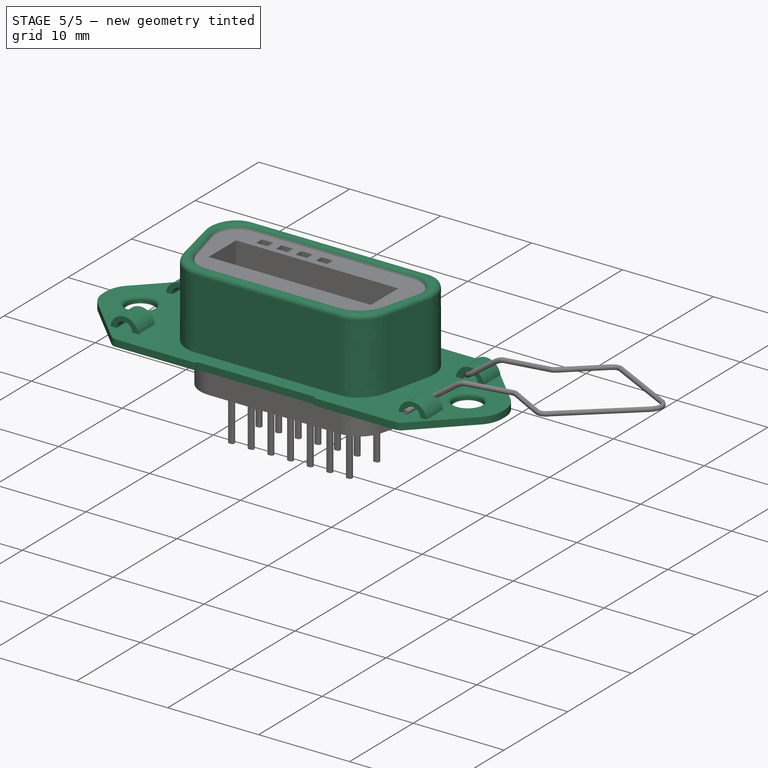
[diagram: stage 5 of 5 — iso view after this stage's code; geometry added in this stage tinted green]
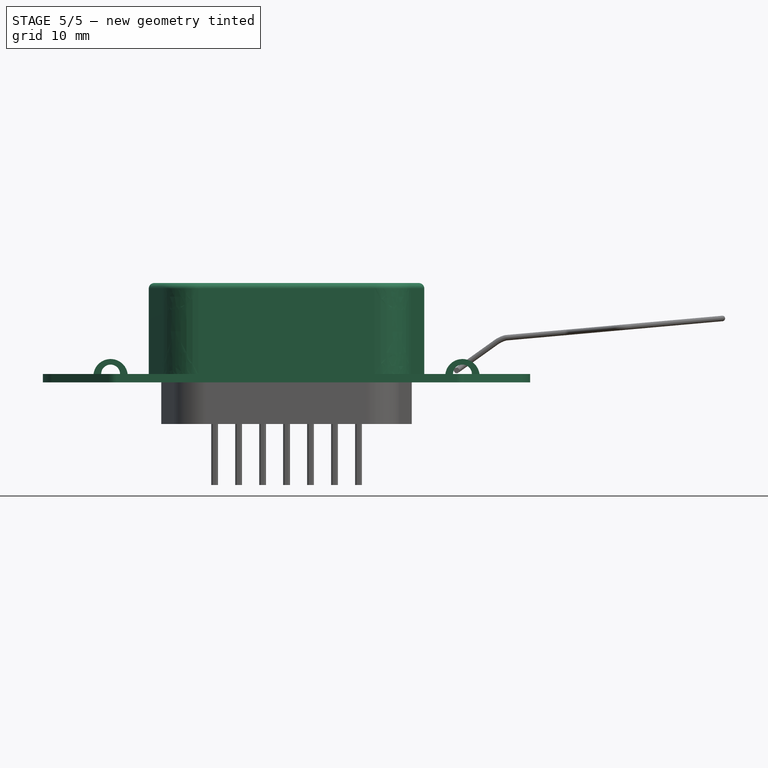
[diagram: stage 5 of 5 — front view after this stage's code; geometry added in this stage tinted green]
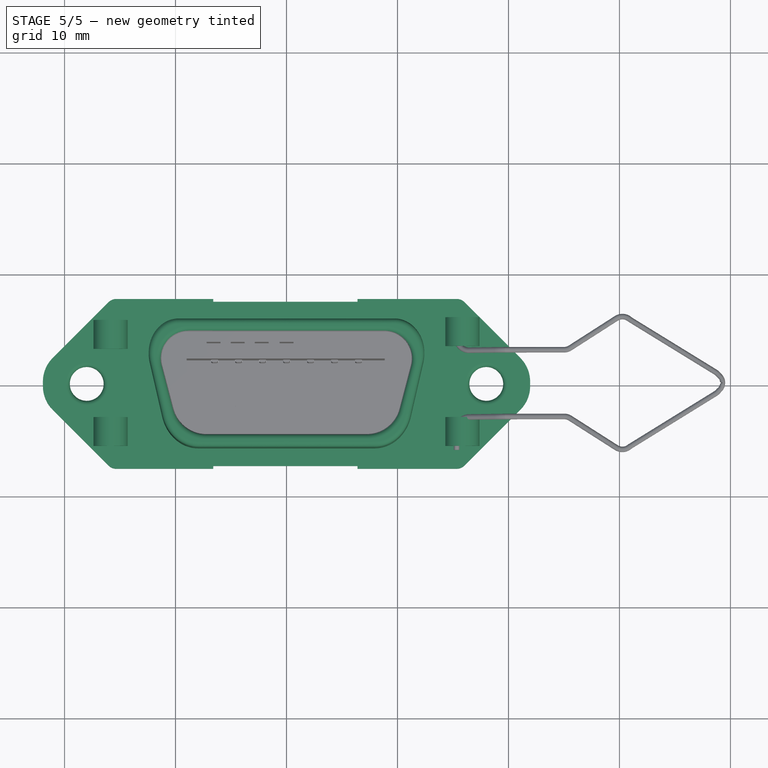
[diagram: stage 5 of 5 — top view after this stage's code; geometry added in this stage tinted green]
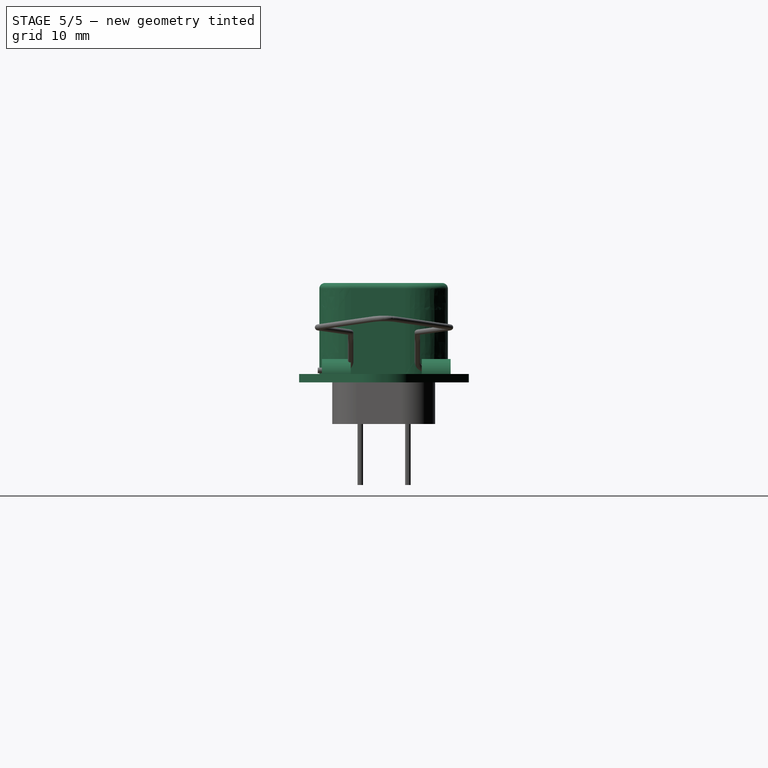
[diagram: stage 5 of 5 — right view after this stage's code; geometry added in this stage tinted green]
FEATURE [PartDesign::SubtractiveBox] Box058  label="bot-edge-cut"
  AttacherType = Attacher::AttachEngine3D
  AttachmentOffset = pos=(-6.6,-7.9,-1) rot=(0,0,1;0rad)
  BaseFeature = -> Box
  Height = 1
  Length = 13
  MapMode = 5
  Placement = pos=(-6.6,-7.9,-1) rot=(0,0,1;0rad)
  Support = -> [XY_Plane017]
  Width = 0.5
FEATURE [Sketcher::SketchObject] Sketch  label="outer-metal"
  FullyConstrained = false
  sketch-geometry (10):
    g0: BSplineCurve PolesCount=3 KnotsCount=2 Degree=2 IsPeriodic=0
    g1: BSplineCurve PolesCount=2 KnotsCount=2 Degree=1 IsPeriodic=0
    g2: BSplineCurve PolesCount=2 KnotsCount=2 Degree=1 IsPeriodic=0
    g3: BSplineCurve PolesCount=3 KnotsCount=2 Degree=2 IsPeriodic=0
    g4: BSplineCurve PolesCount=2 KnotsCount=2 Degree=1 IsPeriodic=0
    g5: BSplineCurve PolesCount=3 KnotsCount=2 Degree=2 IsPeriodic=0
    g6: BSplineCurve PolesCount=2 KnotsCount=2 Degree=1 IsPeriodic=0
    g7: BSplineCurve PolesCount=2 KnotsCount=2 Degree=1 IsPeriodic=0
    g8: BSplineCurve PolesCount=3 KnotsCount=2 Degree=2 IsPeriodic=0
    g9: BSplineCurve PolesCount=2 KnotsCount=2 Degree=1 IsPeriodic=0
FEATURE [PartDesign::Pad] Pad001
  BaseFeature = -> Box058
  Direction = (0,0,1)
  Length = 8.2
  Length2 = 10
  Placement = pos=(-6.6,-7.9,-1) rot=(0,0,1;0rad)
  Profile = -> Sketch
  ReferenceAxis = -> Sketch [N_Axis]
  Type = 0
FEATURE [PartDesign::Pocket] Pocket001  label="plastic-hole"
  BaseFeature = -> Pad001
  Direction = (0,0,-1)
  Length = 18
  Length2 = 5
  Midplane = true
  Placement = pos=(-6.6,-7.9,-1) rot=(0,0,1;0rad)
  Profile = -> Sketch003
  ReferenceAxis = -> Sketch003 [N_Axis]
  Type = 0
FEATURE [PartDesign::Fillet] Fillet  label="inner-plast-hole"
  Base = -> Pocket001 [Edge116,Edge114,Edge97,Edge100,Edge102,Edge104,Edge106,Edge108,Edge110,Edge112]
  BaseFeature = -> Pocket001
  Placement = pos=(-6.6,-7.9,-1) rot=(0,0,1;0rad)
  Radius = 0.5
  SupportTransform = false
  UseAllEdges = false
FEATURE [PartDesign::Fillet] Fillet071  label="outer-plast-hole"
  Base = -> Fillet [Edge60,Edge59,Edge61,Edge63,Edge65,Edge67,Edge68,Edge66,Edge64,Edge62]
  BaseFeature = -> Fillet
  Placement = pos=(-6.6,-7.9,-1) rot=(0,0,1;0rad)
  Radius = 0.5
  SupportTransform = false
  UseAllEdges = false
FEATURE [PartDesign::Fillet] Fillet072  label="attach-holes-smooth"
  Base = -> Fillet071 [Edge261,Edge259,Edge260,Edge263,Edge265,Edge264]
  BaseFeature = -> Fillet071
  Placement = pos=(-6.6,-7.9,-1) rot=(0,0,1;0rad)
  Radius = 0.4
  SupportTransform = false
  UseAllEdges = false
FEATURE [PartDesign::Body] Body016  label="chassis-metal"
  Group = -> [Sketch002,Sketch003,Box057,Chamfer004,Fillet069,Cylinder016,Cylinder017,Cylinder018,Cylinder019,Cylinder020,Cylinder021,Fillet070,Sketch001,Pocket,Box,Box058,Sketch,Pad001,Pocket001,Fillet,Fillet071,Fillet072]
  Origin = -> Origin017
  Placement = pos=(0,0,4.5) rot=(0,0,1;0rad)
  Tip = -> Fillet072
FEATURE [Part::FeaturePython] Equipment  label="Metal-chassis"  # Arch/BIM 79 (typed FeaturePython)
  Base = -> Body016
  EquipmentPower = 0
  HorizontalArea = 0
  IfcData = attributes={"GlobalId": {"name": "GlobalId", "type": "IfcGloballyUniqueId", "is_enum": false, "enum_values": []}, "Description": {"... (+483 chars omitted),+1 more (map truncated)
  IfcType = 79
  MoveBase = false
  MoveWithHost = false
  PerimeterLength = 0
  PredefinedType = 0
  VerticalArea = 0
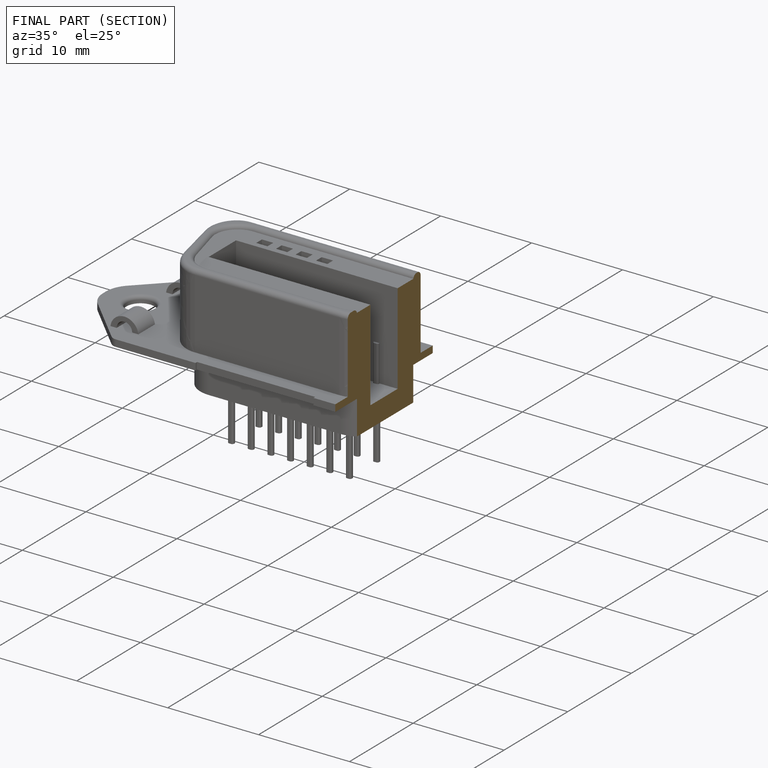
[diagram: finished part — half-section view (interior)]
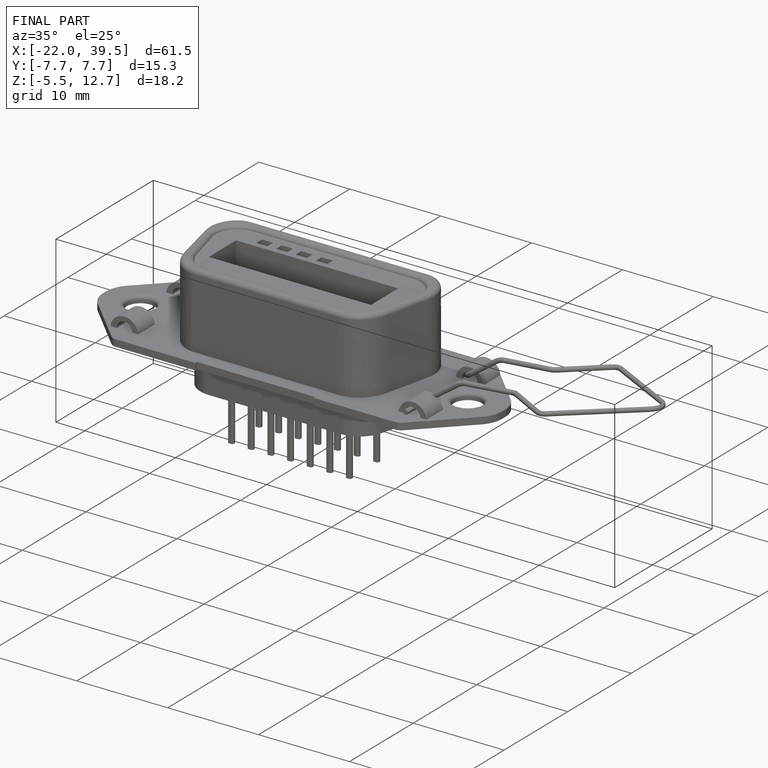
[diagram: finished part — iso view with bounding-box wireframe]
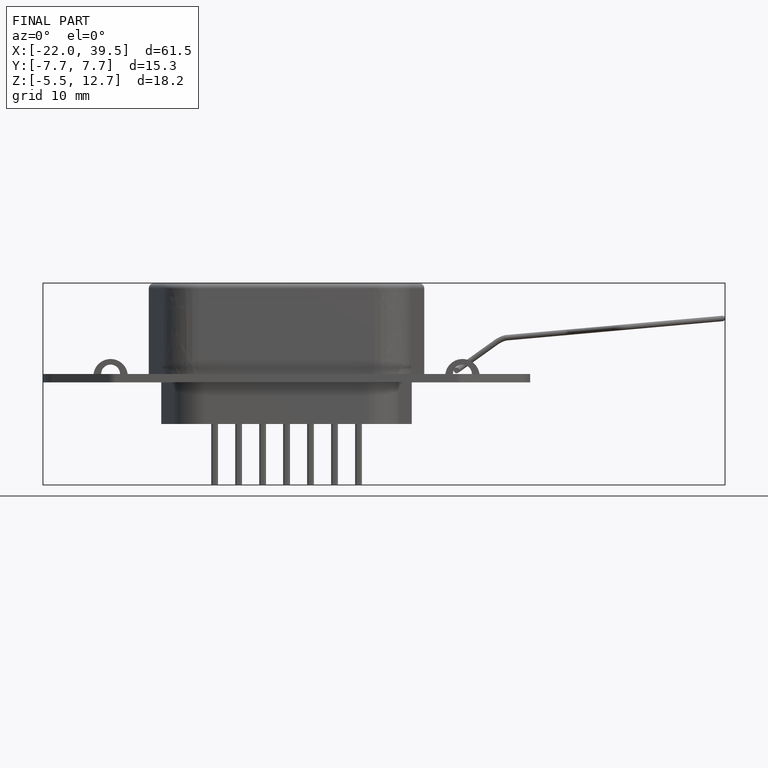
[diagram: finished part — front view with bounding-box wireframe]
